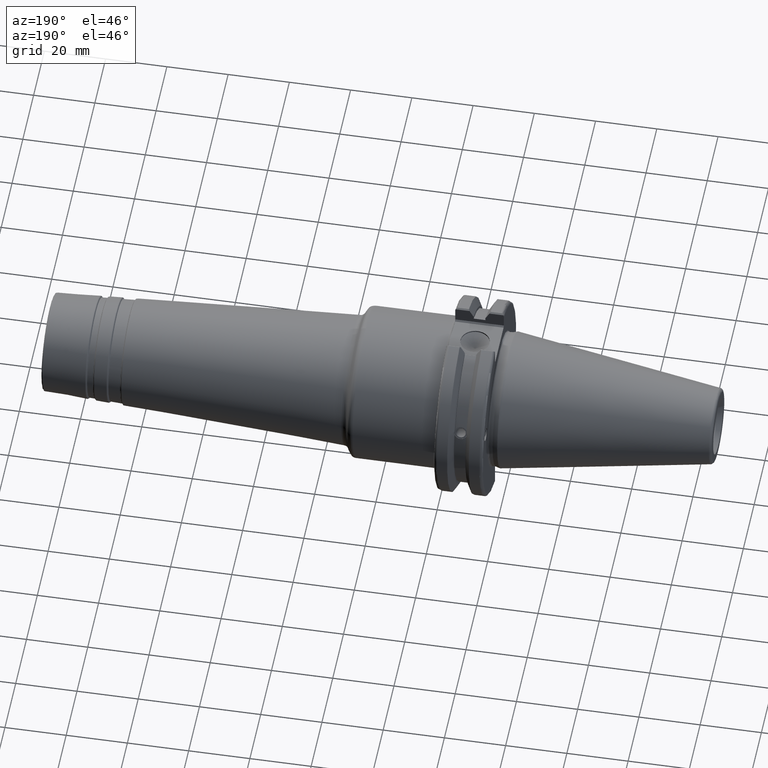
[diagram: clean part render]
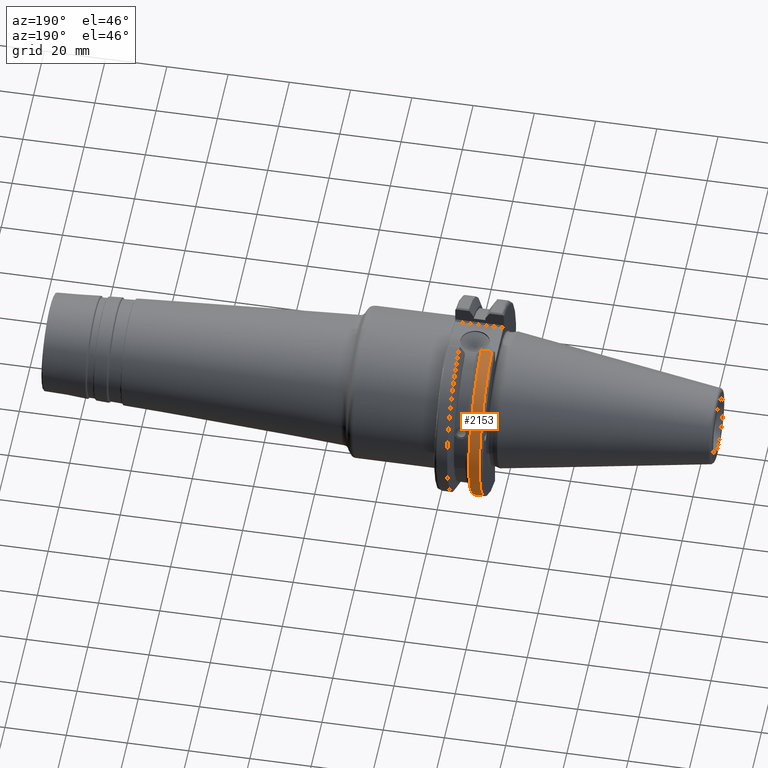
[diagram: same view with one face highlighted and labeled with its STEP entity id]
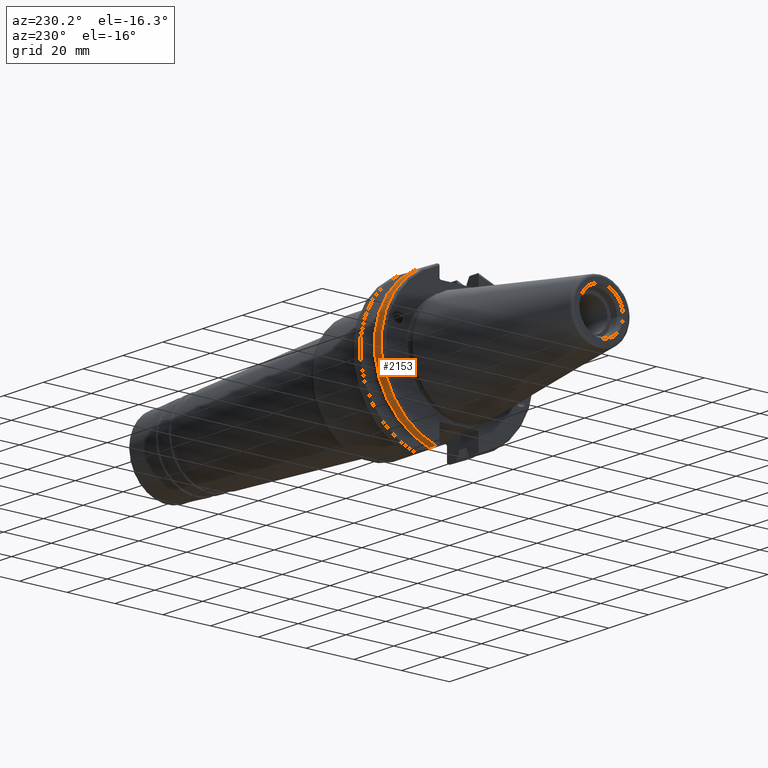
[diagram: same view with one face highlighted and labeled with its STEP entity id]
A machine part, auxiliary view. The second image highlights one B-rep face of the part: STEP entity #2153.
A second angle (auxiliary view) of the same face is appended — the face is thin or edge-on in the first view.
In plain terms, the highlighted cylindrical surface (partial cylindrical patch) has radius 31.75 mm, axis along (1, 0, 0).
Its self-contained STEP definition (entity closure, byte-faithful):
#177=CYLINDRICAL_SURFACE('',#2456,31.75);
#272=FACE_OUTER_BOUND('',#391,.T.);
#391=EDGE_LOOP('',(#1957,#1958,#1959,#1960));
#489=LINE('',#4115,#588);
#502=LINE('',#4172,#601);
#588=VECTOR('',#3054,10.);
#601=VECTOR('',#3115,10.);
#728=CIRCLE('',#2380,31.75);
#754=CIRCLE('',#2430,31.75);
#940=VERTEX_POINT('',#3834);
#941=VERTEX_POINT('',#3838);
#996=VERTEX_POINT('',#4089);
#997=VERTEX_POINT('',#4098);
#1231=EDGE_CURVE('',#940,#941,#728,.T.);
#1312=EDGE_CURVE('',#996,#997,#754,.T.);
#1315=EDGE_CURVE('',#997,#940,#489,.T.);
#1341=EDGE_CURVE('',#941,#996,#502,.T.);
#1957=ORIENTED_EDGE('',*,*,#1312,.F.);
#1958=ORIENTED_EDGE('',*,*,#1341,.F.);
#1959=ORIENTED_EDGE('',*,*,#1231,.F.);
#1960=ORIENTED_EDGE('',*,*,#1315,.F.);
#2153=ADVANCED_FACE('',(#272),#177,.T.);
#2380=AXIS2_PLACEMENT_3D('',#3839,#2918,#2919);
#2430=AXIS2_PLACEMENT_3D('',#4099,#3050,#3051);
#2456=AXIS2_PLACEMENT_3D('',#4173,#3116,#3117);
#2918=DIRECTION('center_axis',(1.,0.,0.));
#2919=DIRECTION('ref_axis',(0.,0.,-1.));
#3050=DIRECTION('center_axis',(-1.,0.,0.));
#3051=DIRECTION('ref_axis',(0.,1.,1.60812264967664E-16));
#3054=DIRECTION('',(1.,0.,0.));
#3115=DIRECTION('',(-1.,0.,0.));
#3116=DIRECTION('center_axis',(1.,0.,0.));
#3117=DIRECTION('ref_axis',(0.,1.,0.));
#3834=CARTESIAN_POINT('',(7.60793323092436,8.67204822802685,-30.5427254764662));
#3838=CARTESIAN_POINT('',(7.60793323092436,8.67204822802685,30.5427254764662));
#3839=CARTESIAN_POINT('Origin',(7.60793323092436,0.,0.));
#4089=CARTESIAN_POINT('',(4.175,8.67204822802685,30.5427254764662));
#4098=CARTESIAN_POINT('',(4.175,8.67204822802685,-30.5427254764662));
#4099=CARTESIAN_POINT('Origin',(4.175,0.,0.));
#4115=CARTESIAN_POINT('',(5.39146661546218,8.67204822802685,-30.5427254764662));
#4172=CARTESIAN_POINT('',(5.39146661546218,8.67204822802685,30.5427254764662));
#4173=CARTESIAN_POINT('Origin',(5.39146661546218,0.,0.));